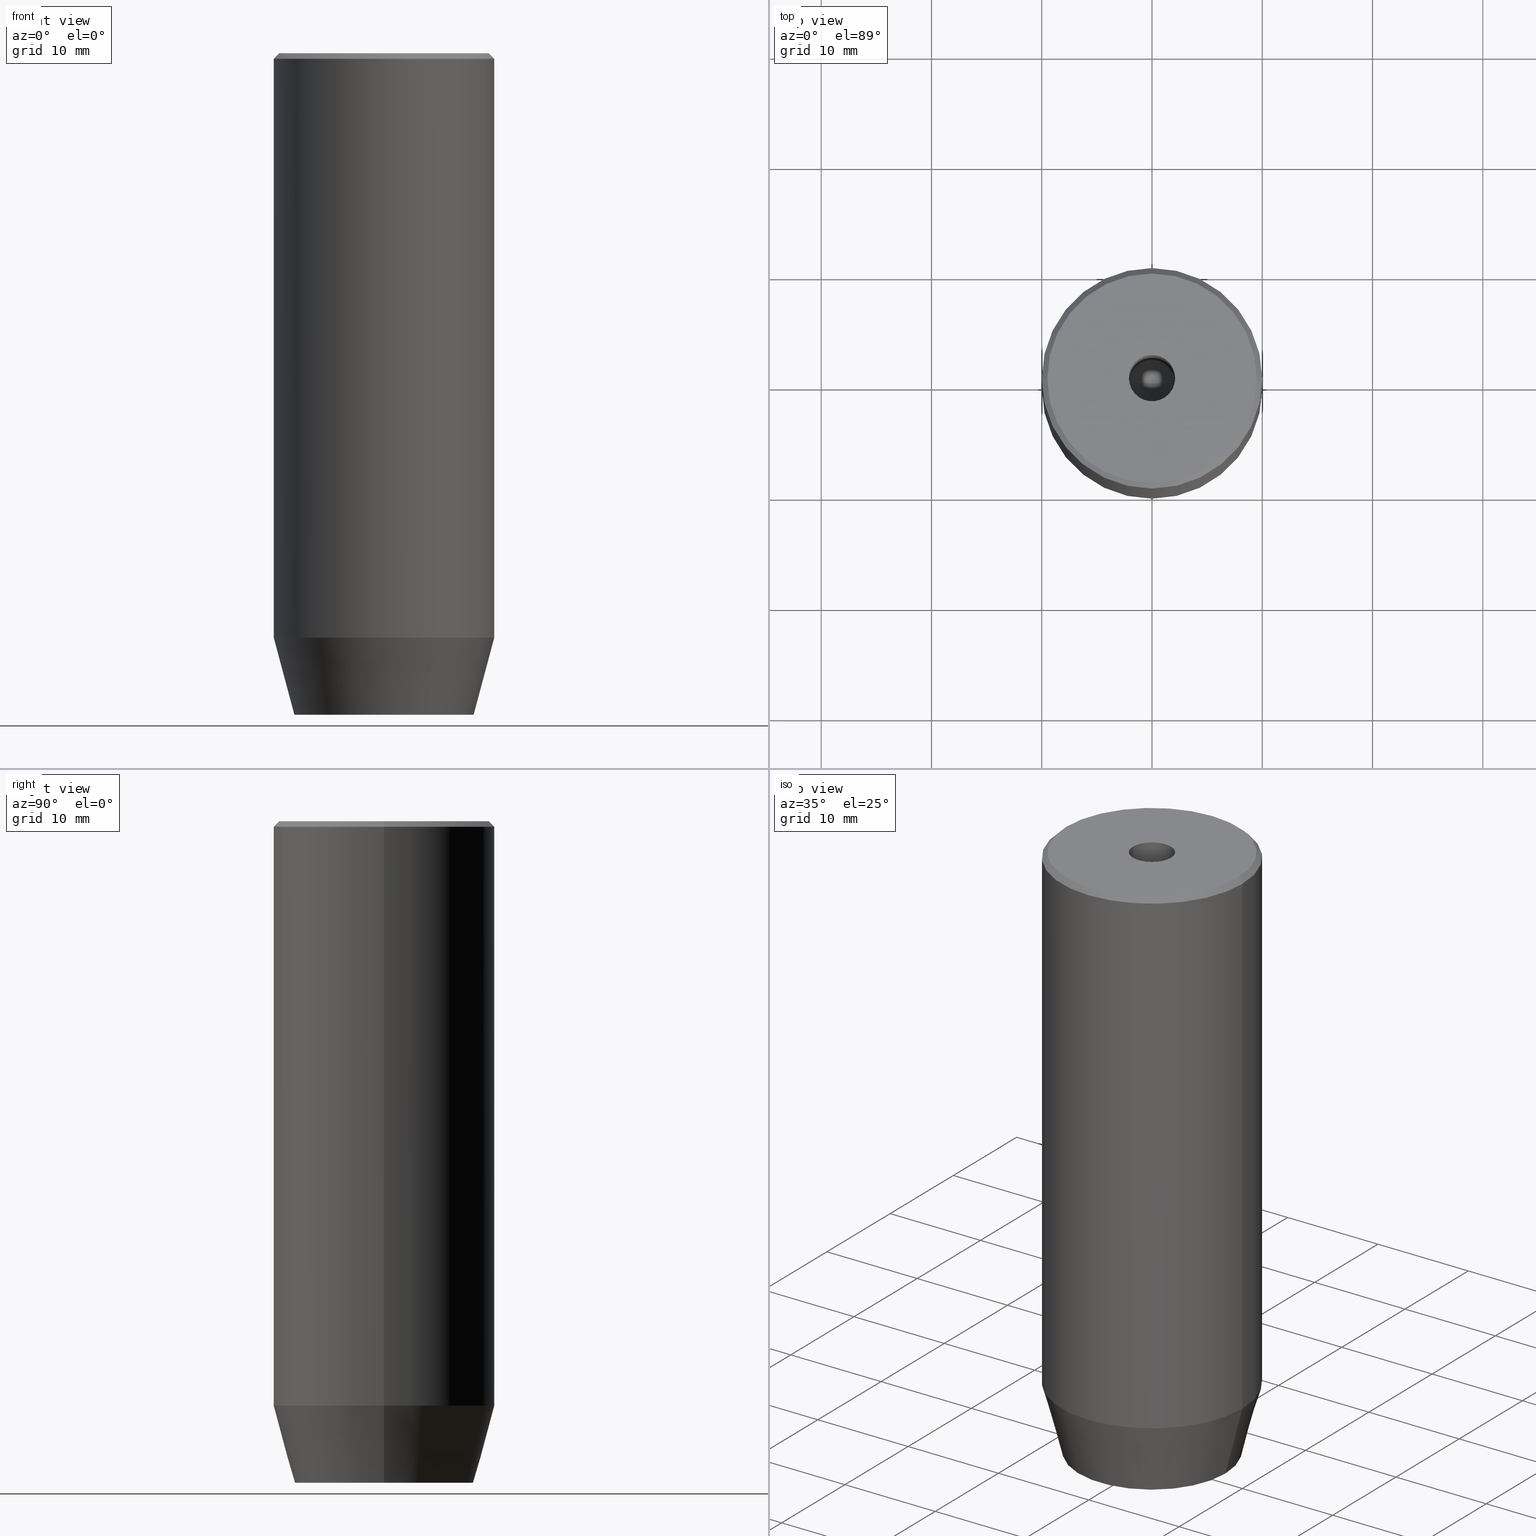
[diagram: canonical four-view strip — front | top / right | iso, engineering-drawing reading convention]
A machine part, canonical four-view strip (front | top / right | iso — engineering-drawing reading convention). The complete STEP part file that produces these views, byte-faithful:
ISO-10303-21;
HEADER;
FILE_DESCRIPTION (( 'STEP AP203' ),
    '1' );
FILE_NAME ('4749.STEP',
    '2024-01-02T19:06:29',
    ( '' ),
    ( '' ),
    'SwSTEP 2.0',
    'SolidWorks 2019',
    '' );
FILE_SCHEMA (( 'CONFIG_CONTROL_DESIGN' ));
ENDSEC;

DATA;
#1 = CARTESIAN_POINT ( 'NONE',  ( -2.000000000000000888, -3.464101615137754386, -57.20000000000000284 ) ) ;
#2 = CARTESIAN_POINT ( 'NONE',  ( -2.000000000000000888, -3.464101615137754386, -60.00000000000000000 ) ) ;
#3 = CARTESIAN_POINT ( 'NONE',  ( 0.000000000000000000, 0.000000000000000000, -1.990051048614449116E-16 ) ) ;
#4 = ORIENTED_EDGE ( 'NONE', *, *, #372, .F. ) ;
#5 = ORIENTED_EDGE ( 'NONE', *, *, #310, .T. ) ;
#6 = DIRECTION ( 'NONE',  ( 1.000000000000000000, 0.000000000000000000, 0.000000000000000000 ) ) ;
#7 = CARTESIAN_POINT ( 'NONE',  ( 0.000000000000000000, 0.000000000000000000, -0.5000000000000056621 ) ) ;
#8 = CARTESIAN_POINT ( 'NONE',  ( 0.000000000000000000, 0.000000000000000000, -1.990051048614449116E-16 ) ) ;
#9 = AXIS2_PLACEMENT_3D ( 'NONE', #189, #147, #235 ) ;
#10 = AXIS2_PLACEMENT_3D ( 'NONE', #87, #103, #281 ) ;
#11 = DIRECTION ( 'NONE',  ( 0.8660254037844385966, -0.5000000000000001110, 0.000000000000000000 ) ) ;
#12 = FACE_OUTER_BOUND ( 'NONE', #113, .T. ) ;
#13 = PRODUCT_RELATED_PRODUCT_CATEGORY ( 'detail', '', ( #487 ) ) ;
#14 = ORIENTED_EDGE ( 'NONE', *, *, #145, .T. ) ;
#15 = FACE_OUTER_BOUND ( 'NONE', #265, .T. ) ;
#16 = AXIS2_PLACEMENT_3D ( 'NONE', #130, #319, #41 ) ;
#17 = CARTESIAN_POINT ( 'NONE',  ( -2.000000000000000000, 3.464101615137754830, -57.20000000000000284 ) ) ;
#18 = ORIENTED_EDGE ( 'NONE', *, *, #218, .T. ) ;
#19 = DIRECTION ( 'NONE',  ( 1.000000000000000000, 0.000000000000000000, 0.000000000000000000 ) ) ;
#20 = EDGE_CURVE ( 'NONE', #101, #73, #497, .T. ) ;
#21 = CARTESIAN_POINT ( 'NONE',  ( -2.000000000000000000, 3.464101615137754830, -60.00000000000000000 ) ) ;
#22 = CARTESIAN_POINT ( 'NONE',  ( 2.099999999999998757, 0.000000000000000000, -1.990051048614449116E-16 ) ) ;
#23 = DIRECTION ( 'NONE',  ( 0.8660254037844384856, -0.5000000000000002220, 0.000000000000000000 ) ) ;
#24 = AXIS2_PLACEMENT_3D ( 'NONE', #420, #211, #523 ) ;
#25 =( LENGTH_UNIT ( ) NAMED_UNIT ( * ) SI_UNIT ( .MILLI., .METRE. ) );
#26 = CC_DESIGN_APPROVAL ( #221, ( #325 ) ) ;
#27 = CARTESIAN_POINT ( 'NONE',  ( 0.000000000000000000, 0.000000000000000000, -0.5000000000000056621 ) ) ;
#28 = CARTESIAN_POINT ( 'NONE',  ( 4.000000000000000000, -2.309401076758502480, -57.20000000000000284 ) ) ;
#29 = ORIENTED_EDGE ( 'NONE', *, *, #20, .T. ) ;
#30 = ORIENTED_EDGE ( 'NONE', *, *, #526, .F. ) ;
#31 = CONICAL_SURFACE ( 'NONE', #328, 9.500000000000001776, 0.7853981633974415066 ) ;
#32 = EDGE_CURVE ( 'NONE', #308, #71, #312, .T. ) ;
#33 = LOCAL_TIME ( 20, 6, 29.00000000000000000, #95 ) ;
#34 = APPROVAL_STATUS ( 'not_yet_approved' ) ;
#35 = CARTESIAN_POINT ( 'NONE',  ( -10.00000000000000000, 1.224646799147353256E-15, -53.00000000000000000 ) ) ;
#36 = ORIENTED_EDGE ( 'NONE', *, *, #498, .T. ) ;
#37 = ORIENTED_EDGE ( 'NONE', *, *, #587, .F. ) ;
#38 = FACE_OUTER_BOUND ( 'NONE', #84, .T. ) ;
#39 = PLANE ( 'NONE',  #59 ) ;
#40 = CARTESIAN_POINT ( 'NONE',  ( 0.000000000000000000, 0.000000000000000000, -53.00000000000000000 ) ) ;
#41 = DIRECTION ( 'NONE',  ( 1.000000000000000000, 0.000000000000000000, 0.000000000000000000 ) ) ;
#42 = ADVANCED_FACE ( 'NONE', ( #12 ), #99, .T. ) ;
#43 = DIRECTION ( 'NONE',  ( -0.000000000000000000, -0.000000000000000000, -1.000000000000000000 ) ) ;
#44 = VECTOR ( 'NONE', #495, 1000.000000000000000 ) ;
#45 = PERSON_AND_ORGANIZATION ( #191, #155 ) ;
#46 = CONICAL_SURFACE ( 'NONE', #9, 10.00000000000000000, 0.2617993877991500740 ) ;
#47 = DIRECTION ( 'NONE',  ( -0.2588190451025213501, 3.169619151431772337E-17, 0.9659258262890680902 ) ) ;
#48 = SECURITY_CLASSIFICATION ( '', '', #88 ) ;
#49 = DIRECTION ( 'NONE',  ( 0.000000000000000000, -1.000000000000000000, 0.000000000000000000 ) ) ;
#50 = ORIENTED_EDGE ( 'NONE', *, *, #176, .F. ) ;
#51 = DIRECTION ( 'NONE',  ( -0.000000000000000000, -0.000000000000000000, 1.000000000000000000 ) ) ;
#52 = VERTEX_POINT ( 'NONE', #194 ) ;
#53 = CARTESIAN_POINT ( 'NONE',  ( 0.000000000000000000, 0.000000000000000000, 0.000000000000000000 ) ) ;
#54 = EDGE_CURVE ( 'NONE', #69, #296, #190, .T. ) ;
#55 = DIRECTION ( 'NONE',  ( 1.000000000000000000, 0.000000000000000000, 0.000000000000000000 ) ) ;
#56 = CARTESIAN_POINT ( 'NONE',  ( 4.336808689942017736E-16, -4.618802153517006737, -57.20000000000000284 ) ) ;
#57 = CARTESIAN_POINT ( 'NONE',  ( -9.500000000000001776, 0.000000000000000000, 0.000000000000000000 ) ) ;
#58 = CARTESIAN_POINT ( 'NONE',  ( 2.000000000000000444, 3.464101615137754386, -57.20000000000000284 ) ) ;
#59 = AXIS2_PLACEMENT_3D ( 'NONE', #423, #250, #421 ) ;
#60 = CC_DESIGN_PERSON_AND_ORGANIZATION_ASSIGNMENT ( #348, #439, ( #355 ) ) ;
#61 = CIRCLE ( 'NONE', #237, 9.500000000000001776 ) ;
#62 = ORIENTED_EDGE ( 'NONE', *, *, #167, .F. ) ;
#63 = CC_DESIGN_SECURITY_CLASSIFICATION ( #48, ( #355 ) ) ;
#64 = DIRECTION ( 'NONE',  ( -0.000000000000000000, -0.000000000000000000, 1.000000000000000000 ) ) ;
#65 = VERTEX_POINT ( 'NONE', #271 ) ;
#66 = FACE_OUTER_BOUND ( 'NONE', #504, .T. ) ;
#67 = ORIENTED_EDGE ( 'NONE', *, *, #310, .F. ) ;
#68 = EDGE_CURVE ( 'NONE', #174, #451, #574, .T. ) ;
#69 = VERTEX_POINT ( 'NONE', #22 ) ;
#70 = VECTOR ( 'NONE', #166, 1000.000000000000000 ) ;
#71 = VERTEX_POINT ( 'NONE', #74 ) ;
#72 = CARTESIAN_POINT ( 'NONE',  ( 4.000000000000000000, 0.000000000000000000, -57.20000000000000284 ) ) ;
#73 = VERTEX_POINT ( 'NONE', #239 ) ;
#74 = CARTESIAN_POINT ( 'NONE',  ( -4.000000000000000000, -2.309401076758503368, -57.20000000000000284 ) ) ;
#75 = VERTEX_POINT ( 'NONE', #204 ) ;
#76 = PLANE ( 'NONE',  #123 ) ;
#77 = DIRECTION ( 'NONE',  ( 0.5000000000000003331, -0.8660254037844385966, 0.000000000000000000 ) ) ;
#78 = VERTEX_POINT ( 'NONE', #416 ) ;
#79 = AXIS2_PLACEMENT_3D ( 'NONE', #53, #496, #452 ) ;
#80 = VECTOR ( 'NONE', #234, 1000.000000000000000 ) ;
#81 =( NAMED_UNIT ( * ) SI_UNIT ( $, .STERADIAN. ) SOLID_ANGLE_UNIT ( ) );
#82 = ORIENTED_EDGE ( 'NONE', *, *, #249, .F. ) ;
#83 = LINE ( 'NONE', #291, #427 ) ;
#84 = EDGE_LOOP ( 'NONE', ( #30, #254, #500, #37 ) ) ;
#85 = ADVANCED_FACE ( 'NONE', ( #301 ), #477, .T. ) ;
#86 = ORIENTED_EDGE ( 'NONE', *, *, #405, .F. ) ;
#87 = CARTESIAN_POINT ( 'NONE',  ( 0.000000000000000000, 0.000000000000000000, 0.000000000000000000 ) ) ;
#88 = SECURITY_CLASSIFICATION_LEVEL ( 'unclassified' ) ;
#89 = LINE ( 'NONE', #535, #241 ) ;
#90 = EDGE_LOOP ( 'NONE', ( #14, #126, #549, #178 ) ) ;
#91 = ADVANCED_FACE ( 'NONE', ( #472, #433 ), #39, .T. ) ;
#92 = ORIENTED_EDGE ( 'NONE', *, *, #382, .F. ) ;
#93 = DIRECTION ( 'NONE',  ( 1.000000000000000000, 0.000000000000000000, 0.000000000000000000 ) ) ;
#94 = APPLICATION_CONTEXT ( 'configuration controlled 3d designs of mechanical parts and assemblies' ) ;
#95 = COORDINATED_UNIVERSAL_TIME_OFFSET ( 1, 0, .AHEAD. ) ;
#96 = VECTOR ( 'NONE', #106, 1000.000000000000114 ) ;
#97 = PERSON_AND_ORGANIZATION ( #191, #155 ) ;
#98 = VECTOR ( 'NONE', #538, 1000.000000000000000 ) ;
#99 = CYLINDRICAL_SURFACE ( 'NONE', #320, 10.00000000000000000 ) ;
#100 = VECTOR ( 'NONE', #142, 1000.000000000000000 ) ;
#101 = VERTEX_POINT ( 'NONE', #28 ) ;
#102 = FACE_OUTER_BOUND ( 'NONE', #282, .T. ) ;
#103 = DIRECTION ( 'NONE',  ( -0.000000000000000000, -0.000000000000000000, 1.000000000000000000 ) ) ;
#104 = FACE_OUTER_BOUND ( 'NONE', #499, .T. ) ;
#105 = CARTESIAN_POINT ( 'NONE',  ( 4.000000000000000000, 2.309401076758503368, -57.20000000000000284 ) ) ;
#106 = DIRECTION ( 'NONE',  ( -0.8660254037844384856, 0.5000000000000002220, 0.000000000000000000 ) ) ;
#107 = CARTESIAN_POINT ( 'NONE',  ( -4.000000000000000000, 2.309401076758503368, -57.20000000000000284 ) ) ;
#108 = VECTOR ( 'NONE', #362, 1000.000000000000000 ) ;
#109 = ORIENTED_EDGE ( 'NONE', *, *, #539, .F. ) ;
#110 = LOCAL_TIME ( 20, 6, 29.00000000000000000, #432 ) ;
#111 = EDGE_CURVE ( 'NONE', #75, #226, #122, .T. ) ;
#112 = FACE_OUTER_BOUND ( 'NONE', #559, .T. ) ;
#113 = EDGE_LOOP ( 'NONE', ( #131, #440, #347, #324 ) ) ;
#114 = DIRECTION ( 'NONE',  ( -0.000000000000000000, -0.000000000000000000, 1.000000000000000000 ) ) ;
#115 = VECTOR ( 'NONE', #49, 1000.000000000000000 ) ;
#116 = EDGE_CURVE ( 'NONE', #73, #78, #83, .T. ) ;
#117 = DIRECTION ( 'NONE',  ( -0.8660254037844385966, -0.4999999999999999445, 0.000000000000000000 ) ) ;
#118 = DIRECTION ( 'NONE',  ( 0.8660254037844384856, 0.5000000000000002220, 0.000000000000000000 ) ) ;
#119 = LINE ( 'NONE', #560, #70 ) ;
#120 = CARTESIAN_POINT ( 'NONE',  ( -2.000000000000000888, -3.464101615137754386, -57.20000000000000284 ) ) ;
#121 = CC_DESIGN_PERSON_AND_ORGANIZATION_ASSIGNMENT ( #307, #577, ( #355 ) ) ;
#122 = LINE ( 'NONE', #212, #215 ) ;
#123 = AXIS2_PLACEMENT_3D ( 'NONE', #17, #455, #117 ) ;
#124 = CC_DESIGN_APPROVAL ( #532, ( #48 ) ) ;
#125 = VERTEX_POINT ( 'NONE', #255 ) ;
#126 = ORIENTED_EDGE ( 'NONE', *, *, #264, .F. ) ;
#127 = CALENDAR_DATE ( 2024, 2, 1 ) ;
#128 = ORIENTED_EDGE ( 'NONE', *, *, #364, .F. ) ;
#129 = APPROVAL_STATUS ( 'not_yet_approved' ) ;
#130 = CARTESIAN_POINT ( 'NONE',  ( 0.000000000000000000, 0.000000000000000000, -60.00000000000000000 ) ) ;
#131 = ORIENTED_EDGE ( 'NONE', *, *, #339, .F. ) ;
#132 = EDGE_CURVE ( 'NONE', #193, #393, #395, .T. ) ;
#133 = AXIS2_PLACEMENT_3D ( 'NONE', #563, #77, #118 ) ;
#134 = VERTEX_POINT ( 'NONE', #314 ) ;
#135 = APPROVAL_ROLE ( '' ) ;
#136 = DIRECTION ( 'NONE',  ( -1.000000000000000000, 0.000000000000000000, 0.000000000000000000 ) ) ;
#137 = LINE ( 'NONE', #303, #366 ) ;
#138 = APPROVAL ( #129, 'NEUR�EN�' ) ;
#139 = DATE_AND_TIME ( #537, #386 ) ;
#140 = DIRECTION ( 'NONE',  ( -1.000000000000000000, 0.000000000000000000, 0.000000000000000000 ) ) ;
#141 = VECTOR ( 'NONE', #188, 1000.000000000000114 ) ;
#142 = DIRECTION ( 'NONE',  ( -0.7071067811865426878, 0.000000000000000000, -0.7071067811865524577 ) ) ;
#143 = AXIS2_PLACEMENT_3D ( 'NONE', #270, #441, #6 ) ;
#144 = AXIS2_PLACEMENT_3D ( 'NONE', #120, #419, #23 ) ;
#145 = EDGE_CURVE ( 'NONE', #78, #217, #540, .T. ) ;
#146 = DIRECTION ( 'NONE',  ( 0.8660254037844387076, 0.5000000000000001110, 0.000000000000000000 ) ) ;
#147 = DIRECTION ( 'NONE',  ( -0.000000000000000000, -0.000000000000000000, 1.000000000000000000 ) ) ;
#148 = CYLINDRICAL_SURFACE ( 'NONE', #267, 10.00000000000000000 ) ;
#149 = ORIENTED_EDGE ( 'NONE', *, *, #162, .T. ) ;
#150 = ORIENTED_EDGE ( 'NONE', *, *, #339, .T. ) ;
#151 = ADVANCED_FACE ( 'NONE', ( #104 ), #486, .F. ) ;
#152 = ORIENTED_EDGE ( 'NONE', *, *, #466, .F. ) ;
#153 = AXIS2_PLACEMENT_3D ( 'NONE', #582, #403, #185 ) ;
#154 = VECTOR ( 'NONE', #47, 1000.000000000000000 ) ;
#155 = ORGANIZATION ( 'NEUR�EN�', 'NEUR�EN�', '' ) ;
#156 = CC_DESIGN_DATE_AND_TIME_ASSIGNMENT ( #139, #223, ( #325 ) ) ;
#157 = DIRECTION ( 'NONE',  ( -0.000000000000000000, -0.000000000000000000, 1.000000000000000000 ) ) ;
#158 = DIRECTION ( 'NONE',  ( -0.000000000000000000, -0.000000000000000000, 1.000000000000000000 ) ) ;
#159 = LINE ( 'NONE', #285, #321 ) ;
#160 = CARTESIAN_POINT ( 'NONE',  ( 0.000000000000000000, 4.618802153517006737, -57.20000000000000284 ) ) ;
#161 = DIRECTION ( 'NONE',  ( -0.000000000000000000, -0.000000000000000000, 1.000000000000000000 ) ) ;
#162 = EDGE_CURVE ( 'NONE', #518, #134, #464, .T. ) ;
#163 = AXIS2_PLACEMENT_3D ( 'NONE', #3, #544, #186 ) ;
#164 = VECTOR ( 'NONE', #525, 1000.000000000000000 ) ;
#165 = PLANE ( 'NONE',  #199 ) ;
#166 = DIRECTION ( 'NONE',  ( 0.000000000000000000, -1.000000000000000000, 0.000000000000000000 ) ) ;
#167 = EDGE_CURVE ( 'NONE', #193, #134, #274, .T. ) ;
#168 = EDGE_LOOP ( 'NONE', ( #86, #109, #262, #318 ) ) ;
#169 = DIRECTION ( 'NONE',  ( 0.000000000000000000, 0.000000000000000000, -1.000000000000000000 ) ) ;
#170 = CIRCLE ( 'NONE', #16, 8.124355652982137244 ) ;
#171 = ORIENTED_EDGE ( 'NONE', *, *, #349, .F. ) ;
#172 = APPROVAL_ROLE ( '' ) ;
#173 = CARTESIAN_POINT ( 'NONE',  ( 0.000000000000000000, 0.000000000000000000, 0.000000000000000000 ) ) ;
#174 = VERTEX_POINT ( 'NONE', #57 ) ;
#175 = FACE_OUTER_BOUND ( 'NONE', #168, .T. ) ;
#176 = EDGE_CURVE ( 'NONE', #71, #75, #545, .T. ) ;
#177 = EDGE_LOOP ( 'NONE', ( #435, #528, #483, #430, #457, #326 ) ) ;
#178 = ORIENTED_EDGE ( 'NONE', *, *, #332, .T. ) ;
#179 = PERSON_AND_ORGANIZATION_ROLE ( 'classification_officer' ) ;
#180 = DIRECTION ( 'NONE',  ( -0.000000000000000000, -0.000000000000000000, -1.000000000000000000 ) ) ;
#181 = CIRCLE ( 'NONE', #429, 10.00000000000000000 ) ;
#182 = APPROVAL_DATE_TIME ( #357, #221 ) ;
#183 = DIRECTION ( 'NONE',  ( 0.7071067811865426878, 8.659560562354873694E-17, -0.7071067811865524577 ) ) ;
#184 = VERTEX_POINT ( 'NONE', #548 ) ;
#185 = DIRECTION ( 'NONE',  ( -0.000000000000000000, 0.000000000000000000, -1.000000000000000000 ) ) ;
#186 = DIRECTION ( 'NONE',  ( 1.000000000000000000, 0.000000000000000000, 0.000000000000000000 ) ) ;
#187 = ADVANCED_FACE ( 'NONE', ( #507 ), #512, .F. ) ;
#188 = DIRECTION ( 'NONE',  ( -0.8660254037844384856, 0.5000000000000002220, 0.000000000000000000 ) ) ;
#189 = CARTESIAN_POINT ( 'NONE',  ( 0.000000000000000000, 0.000000000000000000, -53.00000000000000000 ) ) ;
#190 = CIRCLE ( 'NONE', #163, 2.099999999999998757 ) ;
#191 = PERSON ( 'NEUR�EN�', 'NEUR�EN�', 'NEUR�EN�', ('NEUR�EN�'), ('NEUR�EN�'), ('NEUR�EN�') ) ;
#192 = CARTESIAN_POINT ( 'NONE',  ( 0.000000000000000000, 0.000000000000000000, 0.000000000000000000 ) ) ;
#193 = VERTEX_POINT ( 'NONE', #552 ) ;
#194 = CARTESIAN_POINT ( 'NONE',  ( -2.099999999999995648, 2.571758278209436040E-16, -25.00000000000000000 ) ) ;
#195 = EDGE_CURVE ( 'NONE', #336, #205, #502, .T. ) ;
#196 = ORIENTED_EDGE ( 'NONE', *, *, #145, .F. ) ;
#197 = ORIENTED_EDGE ( 'NONE', *, *, #218, .F. ) ;
#198 = CARTESIAN_POINT ( 'NONE',  ( 0.000000000000000000, 0.000000000000000000, 0.000000000000000000 ) ) ;
#199 = AXIS2_PLACEMENT_3D ( 'NONE', #335, #289, #283 ) ;
#200 = CARTESIAN_POINT ( 'NONE',  ( -2.099999999999998757, 2.571758278209440478E-16, -1.990051048614449116E-16 ) ) ;
#201 = PLANE ( 'NONE',  #133 ) ;
#202 = CARTESIAN_POINT ( 'NONE',  ( -10.00000000000000000, 1.224646799147353256E-15, -0.5000000000000056621 ) ) ;
#203 = DIRECTION ( 'NONE',  ( -0.000000000000000000, -0.000000000000000000, 1.000000000000000000 ) ) ;
#204 = CARTESIAN_POINT ( 'NONE',  ( -4.000000000000000000, 2.309401076758503368, -57.20000000000000284 ) ) ;
#205 = VERTEX_POINT ( 'NONE', #422 ) ;
#206 = FACE_OUTER_BOUND ( 'NONE', #520, .T. ) ;
#207 = ORIENTED_EDGE ( 'NONE', *, *, #276, .F. ) ;
#208 = DIRECTION ( 'NONE',  ( -0.000000000000000000, -0.000000000000000000, 1.000000000000000000 ) ) ;
#209 = ORIENTED_EDGE ( 'NONE', *, *, #410, .T. ) ;
#210 = DIRECTION ( 'NONE',  ( 0.000000000000000000, 0.000000000000000000, -1.000000000000000000 ) ) ;
#211 = DIRECTION ( 'NONE',  ( 0.5000000000000001110, 0.8660254037844385966, -0.000000000000000000 ) ) ;
#212 = CARTESIAN_POINT ( 'NONE',  ( -2.000000000000000000, 3.464101615137754830, -57.20000000000000284 ) ) ;
#213 = ADVANCED_FACE ( 'NONE', ( #371, #505 ), #327, .T. ) ;
#214 = DIRECTION ( 'NONE',  ( 0.8660254037844387076, 0.5000000000000001110, 0.000000000000000000 ) ) ;
#215 = VECTOR ( 'NONE', #214, 999.9999999999998863 ) ;
#216 = AXIS2_PLACEMENT_3D ( 'NONE', #375, #158, #565 ) ;
#217 = VERTEX_POINT ( 'NONE', #508 ) ;
#218 = EDGE_CURVE ( 'NONE', #75, #184, #367, .T. ) ;
#219 = PERSON_AND_ORGANIZATION_ROLE ( 'creator' ) ;
#220 = EDGE_LOOP ( 'NONE', ( #374, #417, #551, #253 ) ) ;
#221 = APPROVAL ( #34, 'NEUR�EN�' ) ;
#222 = CARTESIAN_POINT ( 'NONE',  ( 0.000000000000000000, 0.000000000000000000, 0.000000000000000000 ) ) ;
#223 = DATE_TIME_ROLE ( 'creation_date' ) ;
#224 = ORIENTED_EDGE ( 'NONE', *, *, #132, .T. ) ;
#225 = LINE ( 'NONE', #397, #438 ) ;
#226 = VERTEX_POINT ( 'NONE', #160 ) ;
#227 = AXIS2_PLACEMENT_3D ( 'NONE', #7, #543, #361 ) ;
#228 = CONICAL_SURFACE ( 'NONE', #555, 9.500000000000001776, 0.7853981633974415066 ) ;
#229 = AXIS2_PLACEMENT_3D ( 'NONE', #236, #247, #295 ) ;
#230 = DIRECTION ( 'NONE',  ( 0.000000000000000000, 0.000000000000000000, -1.000000000000000000 ) ) ;
#231 = CARTESIAN_POINT ( 'NONE',  ( -4.000000000000000000, 0.000000000000000000, -57.20000000000000284 ) ) ;
#232 = ADVANCED_FACE ( 'NONE', ( #546 ), #148, .T. ) ;
#233 = DIRECTION ( 'NONE',  ( -0.000000000000000000, -0.000000000000000000, 1.000000000000000000 ) ) ;
#234 = DIRECTION ( 'NONE',  ( -0.000000000000000000, -0.000000000000000000, -1.000000000000000000 ) ) ;
#235 = DIRECTION ( 'NONE',  ( 1.000000000000000000, 0.000000000000000000, 0.000000000000000000 ) ) ;
#236 = CARTESIAN_POINT ( 'NONE',  ( 0.000000000000000000, 0.000000000000000000, 0.000000000000000000 ) ) ;
#237 = AXIS2_PLACEMENT_3D ( 'NONE', #409, #157, #284 ) ;
#238 = EDGE_CURVE ( 'NONE', #125, #73, #119, .T. ) ;
#239 = CARTESIAN_POINT ( 'NONE',  ( 4.000000000000000000, -2.309401076758502480, -60.00000000000000000 ) ) ;
#240 = DIRECTION ( 'NONE',  ( -0.8571673007021108903, 1.049727191138616847E-16, 0.5150380749100565980 ) ) ;
#241 = VECTOR ( 'NONE', #261, 1000.000000000000114 ) ;
#242 = EDGE_CURVE ( 'NONE', #52, #205, #251, .T. ) ;
#243 = EDGE_LOOP ( 'NONE', ( #463, #522 ) ) ;
#244 = DIRECTION ( 'NONE',  ( 1.000000000000000000, 0.000000000000000000, 0.000000000000000000 ) ) ;
#245 = ORIENTED_EDGE ( 'NONE', *, *, #349, .T. ) ;
#246 = FACE_OUTER_BOUND ( 'NONE', #304, .T. ) ;
#247 = DIRECTION ( 'NONE',  ( 0.000000000000000000, 0.000000000000000000, 1.000000000000000000 ) ) ;
#248 = ORIENTED_EDGE ( 'NONE', *, *, #443, .T. ) ;
#249 = EDGE_CURVE ( 'NONE', #360, #101, #509, .T. ) ;
#250 = DIRECTION ( 'NONE',  ( 0.000000000000000000, 0.000000000000000000, -1.000000000000000000 ) ) ;
#251 = CIRCLE ( 'NONE', #216, 2.099999999999995648 ) ;
#252 = DIRECTION ( 'NONE',  ( -1.000000000000000000, 0.000000000000000000, -0.000000000000000000 ) ) ;
#253 = ORIENTED_EDGE ( 'NONE', *, *, #392, .F. ) ;
#254 = ORIENTED_EDGE ( 'NONE', *, *, #379, .T. ) ;
#255 = CARTESIAN_POINT ( 'NONE',  ( 4.000000000000000000, 2.309401076758503368, -60.00000000000000000 ) ) ;
#256 = EDGE_CURVE ( 'NONE', #65, #471, #170, .T. ) ;
#257 = PERSON_AND_ORGANIZATION ( #191, #155 ) ;
#258 = ORIENTED_EDGE ( 'NONE', *, *, #242, .T. ) ;
#259 = CIRCLE ( 'NONE', #460, 8.124355652982137244 ) ;
#260 = PERSON_AND_ORGANIZATION_ROLE ( 'design_owner' ) ;
#261 = DIRECTION ( 'NONE',  ( -0.8660254037844384856, -0.5000000000000002220, 0.000000000000000000 ) ) ;
#262 = ORIENTED_EDGE ( 'NONE', *, *, #466, .T. ) ;
#263 = SHAPE_DEFINITION_REPRESENTATION ( #400, #411 ) ;
#264 = EDGE_CURVE ( 'NONE', #71, #217, #583, .T. ) ;
#265 = EDGE_LOOP ( 'NONE', ( #378, #363, #258 ) ) ;
#266 = AXIS2_PLACEMENT_3D ( 'NONE', #40, #233, #93 ) ;
#267 = AXIS2_PLACEMENT_3D ( 'NONE', #368, #64, #572 ) ;
#268 = APPROVAL_ROLE ( '' ) ;
#269 = LINE ( 'NONE', #389, #396 ) ;
#270 = CARTESIAN_POINT ( 'NONE',  ( 0.000000000000000000, 0.000000000000000000, -25.00000000000000000 ) ) ;
#271 = CARTESIAN_POINT ( 'NONE',  ( 8.124355652982137244, 0.000000000000000000, -60.00000000000000000 ) ) ;
#272 = LINE ( 'NONE', #56, #80 ) ;
#273 = DIRECTION ( 'NONE',  ( -0.000000000000000000, -0.000000000000000000, -1.000000000000000000 ) ) ;
#274 = LINE ( 'NONE', #491, #44 ) ;
#275 = LINE ( 'NONE', #584, #108 ) ;
#276 = EDGE_CURVE ( 'NONE', #134, #518, #354, .T. ) ;
#277 = ORIENTED_EDGE ( 'NONE', *, *, #238, .T. ) ;
#278 = AXIS2_PLACEMENT_3D ( 'NONE', #516, #169, #252 ) ;
#279 = AXIS2_PLACEMENT_3D ( 'NONE', #331, #114, #456 ) ;
#280 = ORIENTED_EDGE ( 'NONE', *, *, #410, .F. ) ;
#281 = DIRECTION ( 'NONE',  ( 1.000000000000000000, 0.000000000000000000, 0.000000000000000000 ) ) ;
#282 = EDGE_LOOP ( 'NONE', ( #408, #484, #580 ) ) ;
#283 = DIRECTION ( 'NONE',  ( 0.000000000000000000, 0.000000000000000000, 1.000000000000000000 ) ) ;
#284 = DIRECTION ( 'NONE',  ( 1.000000000000000000, 0.000000000000000000, 0.000000000000000000 ) ) ;
#285 = CARTESIAN_POINT ( 'NONE',  ( 2.099999999999996980, 0.000000000000000000, 0.000000000000000000 ) ) ;
#286 = ADVANCED_FACE ( 'NONE', ( #381 ), #76, .F. ) ;
#287 = CIRCLE ( 'NONE', #575, 2.099999999999998757 ) ;
#288 = ADVANCED_FACE ( 'NONE', ( #206 ), #165, .F. ) ;
#289 = DIRECTION ( 'NONE',  ( -1.000000000000000000, 0.000000000000000000, 0.000000000000000000 ) ) ;
#290 = CC_DESIGN_DATE_AND_TIME_ASSIGNMENT ( #317, #428, ( #48 ) ) ;
#291 = CARTESIAN_POINT ( 'NONE',  ( 2.000000000000000888, -3.464101615137754386, -60.00000000000000000 ) ) ;
#292 = VECTOR ( 'NONE', #180, 1000.000000000000000 ) ;
#293 =( NAMED_UNIT ( * ) PLANE_ANGLE_UNIT ( ) SI_UNIT ( $, .RADIAN. ) );
#294 = AXIS2_PLACEMENT_3D ( 'NONE', #316, #51, #55 ) ;
#295 = DIRECTION ( 'NONE',  ( 1.000000000000000000, 0.000000000000000000, 0.000000000000000000 ) ) ;
#296 = VERTEX_POINT ( 'NONE', #200 ) ;
#297 = DATE_AND_TIME ( #524, #322 ) ;
#298 = CYLINDRICAL_SURFACE ( 'NONE', #10, 2.099999999999996980 ) ;
#299 = APPROVAL_STATUS ( 'not_yet_approved' ) ;
#300 = LINE ( 'NONE', #391, #337 ) ;
#301 = FACE_OUTER_BOUND ( 'NONE', #177, .T. ) ;
#302 = AXIS2_PLACEMENT_3D ( 'NONE', #198, #450, #558 ) ;
#303 = CARTESIAN_POINT ( 'NONE',  ( 0.000000000000000000, 4.618802153517006737, -57.20000000000000284 ) ) ;
#304 = EDGE_LOOP ( 'NONE', ( #209, #67, #128, #426 ) ) ;
#305 = LOCAL_TIME ( 20, 6, 29.00000000000000000, #529 ) ;
#306 = EDGE_LOOP ( 'NONE', ( #453, #334, #343, #207 ) ) ;
#307 = PERSON_AND_ORGANIZATION ( #191, #155 ) ;
#308 = VERTEX_POINT ( 'NONE', #415 ) ;
#309 = ORIENTED_EDGE ( 'NONE', *, *, #414, .F. ) ;
#310 = EDGE_CURVE ( 'NONE', #360, #125, #338, .T. ) ;
#311 = PERSON_AND_ORGANIZATION ( #191, #155 ) ;
#312 = LINE ( 'NONE', #1, #96 ) ;
#313 = ORIENTED_EDGE ( 'NONE', *, *, #498, .F. ) ;
#314 = CARTESIAN_POINT ( 'NONE',  ( 10.00000000000000000, 0.000000000000000000, -0.5000000000000056621 ) ) ;
#315 = CARTESIAN_POINT ( 'NONE',  ( -10.00000000000000000, 1.224646799147353256E-15, -53.00000000000000000 ) ) ;
#316 = CARTESIAN_POINT ( 'NONE',  ( 0.000000000000000000, 0.000000000000000000, -53.00000000000000000 ) ) ;
#317 = DATE_AND_TIME ( #351, #110 ) ;
#318 = ORIENTED_EDGE ( 'NONE', *, *, #54, .T. ) ;
#319 = DIRECTION ( 'NONE',  ( -0.000000000000000000, -0.000000000000000000, 1.000000000000000000 ) ) ;
#320 = AXIS2_PLACEMENT_3D ( 'NONE', #358, #377, #437 ) ;
#321 = VECTOR ( 'NONE', #203, 1000.000000000000000 ) ;
#322 = LOCAL_TIME ( 20, 6, 29.00000000000000000, #390 ) ;
#323 = EDGE_CURVE ( 'NONE', #393, #193, #181, .T. ) ;
#324 = ORIENTED_EDGE ( 'NONE', *, *, #276, .T. ) ;
#325 = PRODUCT_DEFINITION ( 'NEZN�M�', '', #355, #458 ) ;
#326 = ORIENTED_EDGE ( 'NONE', *, *, #176, .T. ) ;
#327 = PLANE ( 'NONE',  #475 ) ;
#328 = AXIS2_PLACEMENT_3D ( 'NONE', #173, #230, #140 ) ;
#329 = EDGE_LOOP ( 'NONE', ( #365, #313 ) ) ;
#330 =( GEOMETRIC_REPRESENTATION_CONTEXT ( 3 ) GLOBAL_UNCERTAINTY_ASSIGNED_CONTEXT ( ( #333 ) ) GLOBAL_UNIT_ASSIGNED_CONTEXT ( ( #25, #293, #81 ) ) REPRESENTATION_CONTEXT ( 'NONE', 'WORKASPACE' ) );
#331 = CARTESIAN_POINT ( 'NONE',  ( 0.000000000000000000, 0.000000000000000000, -25.00000000000000000 ) ) ;
#332 = EDGE_CURVE ( 'NONE', #308, #78, #272, .T. ) ;
#333 = UNCERTAINTY_MEASURE_WITH_UNIT (LENGTH_MEASURE( 1.000000000000000082E-05 ), #25, 'distance_accuracy_value', 'NONE');
#334 = ORIENTED_EDGE ( 'NONE', *, *, #68, .F. ) ;
#335 = CARTESIAN_POINT ( 'NONE',  ( -4.000000000000000000, 0.000000000000000000, -57.20000000000000284 ) ) ;
#336 = VERTEX_POINT ( 'NONE', #406 ) ;
#337 = VECTOR ( 'NONE', #476, 1000.000000000000000 ) ;
#338 = LINE ( 'NONE', #511, #385 ) ;
#339 = EDGE_CURVE ( 'NONE', #393, #518, #275, .T. ) ;
#340 = CARTESIAN_POINT ( 'NONE',  ( 0.000000000000000000, 0.000000000000000000, -53.00000000000000000 ) ) ;
#341 = CC_DESIGN_PERSON_AND_ORGANIZATION_ASSIGNMENT ( #45, #219, ( #325 ) ) ;
#342 = CC_DESIGN_PERSON_AND_ORGANIZATION_ASSIGNMENT ( #257, #260, ( #487 ) ) ;
#343 = ORIENTED_EDGE ( 'NONE', *, *, #587, .T. ) ;
#344 = ORIENTED_EDGE ( 'NONE', *, *, #116, .T. ) ;
#345 = VECTOR ( 'NONE', #146, 999.9999999999998863 ) ;
#346 = APPROVAL_PERSON_ORGANIZATION ( #353, #221, #135 ) ;
#347 = ORIENTED_EDGE ( 'NONE', *, *, #167, .T. ) ;
#348 = PERSON_AND_ORGANIZATION ( #191, #155 ) ;
#349 = EDGE_CURVE ( 'NONE', #296, #69, #287, .T. ) ;
#350 = VERTEX_POINT ( 'NONE', #404 ) ;
#351 = CALENDAR_DATE ( 2024, 2, 1 ) ;
#352 = ORIENTED_EDGE ( 'NONE', *, *, #332, .F. ) ;
#353 = PERSON_AND_ORGANIZATION ( #191, #155 ) ;
#354 = CIRCLE ( 'NONE', #448, 10.00000000000000000 ) ;
#355 = PRODUCT_DEFINITION_FORMATION_WITH_SPECIFIED_SOURCE ( 'LIBOVOLN�', '', #487, .NOT_KNOWN. ) ;
#356 = ADVANCED_FACE ( 'NONE', ( #444 ), #46, .T. ) ;
#357 = DATE_AND_TIME ( #127, #305 ) ;
#358 = CARTESIAN_POINT ( 'NONE',  ( 0.000000000000000000, 0.000000000000000000, 0.000000000000000000 ) ) ;
#359 = LINE ( 'NONE', #315, #154 ) ;
#360 = VERTEX_POINT ( 'NONE', #105 ) ;
#361 = DIRECTION ( 'NONE',  ( 1.000000000000000000, 0.000000000000000000, 0.000000000000000000 ) ) ;
#362 = DIRECTION ( 'NONE',  ( -0.000000000000000000, -0.000000000000000000, 1.000000000000000000 ) ) ;
#363 = ORIENTED_EDGE ( 'NONE', *, *, #489, .T. ) ;
#364 = EDGE_CURVE ( 'NONE', #226, #360, #536, .T. ) ;
#365 = ORIENTED_EDGE ( 'NONE', *, *, #256, .F. ) ;
#366 = VECTOR ( 'NONE', #43, 1000.000000000000000 ) ;
#367 = LINE ( 'NONE', #107, #407 ) ;
#368 = CARTESIAN_POINT ( 'NONE',  ( 0.000000000000000000, 0.000000000000000000, 0.000000000000000000 ) ) ;
#369 = ORIENTED_EDGE ( 'NONE', *, *, #20, .F. ) ;
#370 = FACE_OUTER_BOUND ( 'NONE', #531, .T. ) ;
#371 = FACE_BOUND ( 'NONE', #425, .T. ) ;
#372 = EDGE_CURVE ( 'NONE', #226, #350, #137, .T. ) ;
#373 = ORIENTED_EDGE ( 'NONE', *, *, #431, .T. ) ;
#374 = ORIENTED_EDGE ( 'NONE', *, *, #256, .T. ) ;
#375 = CARTESIAN_POINT ( 'NONE',  ( 0.000000000000000000, 0.000000000000000000, -25.00000000000000000 ) ) ;
#376 = DIRECTION ( 'NONE',  ( 1.000000000000000000, 0.000000000000000000, 0.000000000000000000 ) ) ;
#377 = DIRECTION ( 'NONE',  ( -0.000000000000000000, -0.000000000000000000, 1.000000000000000000 ) ) ;
#378 = ORIENTED_EDGE ( 'NONE', *, *, #195, .F. ) ;
#379 = EDGE_CURVE ( 'NONE', #451, #134, #225, .T. ) ;
#380 = CIRCLE ( 'NONE', #279, 2.099999999999995648 ) ;
#381 = FACE_OUTER_BOUND ( 'NONE', #542, .T. ) ;
#382 = EDGE_CURVE ( 'NONE', #471, #393, #359, .T. ) ;
#383 = APPROVAL_DATE_TIME ( #297, #138 ) ;
#384 = CONICAL_SURFACE ( 'NONE', #143, 2.099999999999995648, 1.029744258676651647 ) ;
#385 = VECTOR ( 'NONE', #418, 1000.000000000000000 ) ;
#386 = LOCAL_TIME ( 20, 6, 29.00000000000000000, #436 ) ;
#387 = ORIENTED_EDGE ( 'NONE', *, *, #264, .T. ) ;
#388 = APPROVAL_DATE_TIME ( #485, #532 ) ;
#389 = CARTESIAN_POINT ( 'NONE',  ( -2.099999999999996980, 2.571758278209438013E-16, 0.000000000000000000 ) ) ;
#390 = COORDINATED_UNIVERSAL_TIME_OFFSET ( 1, 0, .AHEAD. ) ;
#391 = CARTESIAN_POINT ( 'NONE',  ( 2.000000000000000444, 3.464101615137754386, -60.00000000000000000 ) ) ;
#392 = EDGE_CURVE ( 'NONE', #65, #193, #488, .T. ) ;
#393 = VERTEX_POINT ( 'NONE', #35 ) ;
#394 = CARTESIAN_POINT ( 'NONE',  ( -4.000000000000000000, -2.309401076758503368, -57.20000000000000284 ) ) ;
#395 = CIRCLE ( 'NONE', #266, 10.00000000000000000 ) ;
#396 = VECTOR ( 'NONE', #530, 1000.000000000000000 ) ;
#397 = CARTESIAN_POINT ( 'NONE',  ( 9.500000000000001776, 1.163414459189985682E-15, 0.000000000000000000 ) ) ;
#398 = DIRECTION ( 'NONE',  ( 0.000000000000000000, 1.000000000000000000, 0.000000000000000000 ) ) ;
#399 = APPLICATION_PROTOCOL_DEFINITION ( 'international standard', 'config_control_design', 1994, #94 ) ;
#400 = PRODUCT_DEFINITION_SHAPE ( 'NONE', 'NONE',  #325 ) ;
#401 = LINE ( 'NONE', #541, #100 ) ;
#402 = ORIENTED_EDGE ( 'NONE', *, *, #405, .T. ) ;
#403 = DIRECTION ( 'NONE',  ( 1.000000000000000000, 0.000000000000000000, -0.000000000000000000 ) ) ;
#404 = CARTESIAN_POINT ( 'NONE',  ( 2.168404344971008868E-16, 4.618802153517006737, -60.00000000000000000 ) ) ;
#405 = EDGE_CURVE ( 'NONE', #52, #296, #269, .T. ) ;
#406 = CARTESIAN_POINT ( 'NONE',  ( -6.432287649943602629E-15, 0.000000000000000000, -26.26180729995787999 ) ) ;
#407 = VECTOR ( 'NONE', #561, 1000.000000000000000 ) ;
#408 = ORIENTED_EDGE ( 'NONE', *, *, #489, .F. ) ;
#409 = CARTESIAN_POINT ( 'NONE',  ( 0.000000000000000000, 0.000000000000000000, 0.000000000000000000 ) ) ;
#410 = EDGE_CURVE ( 'NONE', #350, #125, #300, .T. ) ;
#411 = ADVANCED_BREP_SHAPE_REPRESENTATION ( '4749', ( #445, #229 ), #330 ) ;
#412 = CARTESIAN_POINT ( 'NONE',  ( 0.000000000000000000, 0.000000000000000000, -60.00000000000000000 ) ) ;
#413 = ORIENTED_EDGE ( 'NONE', *, *, #54, .F. ) ;
#414 = EDGE_CURVE ( 'NONE', #101, #308, #89, .T. ) ;
#415 = CARTESIAN_POINT ( 'NONE',  ( 4.336808689942017736E-16, -4.618802153517006737, -57.20000000000000284 ) ) ;
#416 = CARTESIAN_POINT ( 'NONE',  ( 4.336808689942017736E-16, -4.618802153517006737, -60.00000000000000000 ) ) ;
#417 = ORIENTED_EDGE ( 'NONE', *, *, #382, .T. ) ;
#418 = DIRECTION ( 'NONE',  ( -0.000000000000000000, -0.000000000000000000, -1.000000000000000000 ) ) ;
#419 = DIRECTION ( 'NONE',  ( -0.5000000000000003331, -0.8660254037844385966, 0.000000000000000000 ) ) ;
#420 = CARTESIAN_POINT ( 'NONE',  ( 2.000000000000000444, 3.464101615137754386, -57.20000000000000284 ) ) ;
#421 = DIRECTION ( 'NONE',  ( -1.000000000000000000, 0.000000000000000000, -0.000000000000000000 ) ) ;
#422 = CARTESIAN_POINT ( 'NONE',  ( 2.099999999999995648, 0.000000000000000000, -25.00000000000000000 ) ) ;
#423 = CARTESIAN_POINT ( 'NONE',  ( 0.000000000000000000, 8.124355652982137244, -60.00000000000000000 ) ) ;
#424 = ADVANCED_FACE ( 'NONE', ( #38 ), #228, .T. ) ;
#425 = EDGE_LOOP ( 'NONE', ( #413, #171 ) ) ;
#426 = ORIENTED_EDGE ( 'NONE', *, *, #372, .T. ) ;
#427 = VECTOR ( 'NONE', #467, 1000.000000000000114 ) ;
#428 = DATE_TIME_ROLE ( 'classification_date' ) ;
#429 = AXIS2_PLACEMENT_3D ( 'NONE', #340, #208, #513 ) ;
#430 = ORIENTED_EDGE ( 'NONE', *, *, #414, .T. ) ;
#431 = EDGE_CURVE ( 'NONE', #217, #184, #482, .T. ) ;
#432 = COORDINATED_UNIVERSAL_TIME_OFFSET ( 1, 0, .AHEAD. ) ;
#433 = FACE_OUTER_BOUND ( 'NONE', #329, .T. ) ;
#434 = DIRECTION ( 'NONE',  ( -0.000000000000000000, -0.000000000000000000, 1.000000000000000000 ) ) ;
#435 = ORIENTED_EDGE ( 'NONE', *, *, #111, .T. ) ;
#436 = COORDINATED_UNIVERSAL_TIME_OFFSET ( 1, 0, .AHEAD. ) ;
#437 = DIRECTION ( 'NONE',  ( 1.000000000000000000, 0.000000000000000000, 0.000000000000000000 ) ) ;
#438 = VECTOR ( 'NONE', #183, 1000.000000000000000 ) ;
#439 = PERSON_AND_ORGANIZATION_ROLE ( 'design_supplier' ) ;
#440 = ORIENTED_EDGE ( 'NONE', *, *, #323, .T. ) ;
#441 = DIRECTION ( 'NONE',  ( -0.000000000000000000, -0.000000000000000000, 1.000000000000000000 ) ) ;
#442 = DIRECTION ( 'NONE',  ( 1.000000000000000000, 0.000000000000000000, 0.000000000000000000 ) ) ;
#443 = EDGE_CURVE ( 'NONE', #184, #350, #446, .T. ) ;
#444 = FACE_OUTER_BOUND ( 'NONE', #220, .T. ) ;
#445 = MANIFOLD_SOLID_BREP ( 'Vrt�k z�vitn�ku pro M5 z�vit1', #554 ) ;
#446 = LINE ( 'NONE', #21, #345 ) ;
#447 = DIRECTION ( 'NONE',  ( 1.000000000000000000, 0.000000000000000000, 0.000000000000000000 ) ) ;
#448 = AXIS2_PLACEMENT_3D ( 'NONE', #27, #210, #19 ) ;
#449 = ADVANCED_FACE ( 'NONE', ( #579 ), #31, .T. ) ;
#450 = DIRECTION ( 'NONE',  ( -0.000000000000000000, -0.000000000000000000, 1.000000000000000000 ) ) ;
#451 = VERTEX_POINT ( 'NONE', #490 ) ;
#452 = DIRECTION ( 'NONE',  ( 1.000000000000000000, 0.000000000000000000, 0.000000000000000000 ) ) ;
#453 = ORIENTED_EDGE ( 'NONE', *, *, #379, .F. ) ;
#454 = DIRECTION ( 'NONE',  ( 0.000000000000000000, -0.000000000000000000, 1.000000000000000000 ) ) ;
#455 = DIRECTION ( 'NONE',  ( -0.5000000000000000000, 0.8660254037844387076, 0.000000000000000000 ) ) ;
#456 = DIRECTION ( 'NONE',  ( 1.000000000000000000, 0.000000000000000000, 0.000000000000000000 ) ) ;
#457 = ORIENTED_EDGE ( 'NONE', *, *, #32, .T. ) ;
#458 = DESIGN_CONTEXT ( 'detailed design', #94, 'design' ) ;
#459 = ADVANCED_FACE ( 'NONE', ( #102 ), #384, .F. ) ;
#460 = AXIS2_PLACEMENT_3D ( 'NONE', #412, #564, #447 ) ;
#461 = ORIENTED_EDGE ( 'NONE', *, *, #392, .T. ) ;
#462 = CARTESIAN_POINT ( 'NONE',  ( -8.124355652982137244, 1.109796706851640556E-15, -60.00000000000000000 ) ) ;
#463 = ORIENTED_EDGE ( 'NONE', *, *, #68, .T. ) ;
#464 = CIRCLE ( 'NONE', #227, 10.00000000000000000 ) ;
#465 = CC_DESIGN_APPROVAL ( #138, ( #355 ) ) ;
#466 = EDGE_CURVE ( 'NONE', #205, #69, #159, .T. ) ;
#467 = DIRECTION ( 'NONE',  ( -0.8660254037844384856, -0.5000000000000002220, 0.000000000000000000 ) ) ;
#468 = ORIENTED_EDGE ( 'NONE', *, *, #116, .F. ) ;
#469 = ORIENTED_EDGE ( 'NONE', *, *, #238, .F. ) ;
#470 = DIRECTION ( 'NONE',  ( 0.8571673007021108903, 0.000000000000000000, 0.5150380749100565980 ) ) ;
#471 = VERTEX_POINT ( 'NONE', #462 ) ;
#472 = FACE_BOUND ( 'NONE', #517, .T. ) ;
#473 = CARTESIAN_POINT ( 'NONE',  ( 2.099999999999995648, 0.000000000000000000, -25.00000000000000000 ) ) ;
#474 = ADVANCED_FACE ( 'NONE', ( #15 ), #503, .F. ) ;
#475 = AXIS2_PLACEMENT_3D ( 'NONE', #192, #454, #376 ) ;
#476 = DIRECTION ( 'NONE',  ( 0.8660254037844385966, -0.5000000000000001110, 0.000000000000000000 ) ) ;
#477 = PLANE ( 'NONE',  #278 ) ;
#478 = APPROVAL_PERSON_ORGANIZATION ( #97, #532, #268 ) ;
#479 = ORIENTED_EDGE ( 'NONE', *, *, #431, .F. ) ;
#480 = CC_DESIGN_PERSON_AND_ORGANIZATION_ASSIGNMENT ( #311, #179, ( #48 ) ) ;
#481 = CALENDAR_DATE ( 2024, 2, 1 ) ;
#482 = LINE ( 'NONE', #586, #98 ) ;
#483 = ORIENTED_EDGE ( 'NONE', *, *, #249, .T. ) ;
#484 = ORIENTED_EDGE ( 'NONE', *, *, #195, .T. ) ;
#485 = DATE_AND_TIME ( #481, #33 ) ;
#486 = PLANE ( 'NONE',  #153 ) ;
#487 = PRODUCT ( '4749', '4749', '', ( #521 ) ) ;
#488 = LINE ( 'NONE', #578, #164 ) ;
#489 = EDGE_CURVE ( 'NONE', #336, #52, #567, .T. ) ;
#490 = CARTESIAN_POINT ( 'NONE',  ( 9.500000000000001776, 1.194030629168669469E-15, 0.000000000000000000 ) ) ;
#491 = CARTESIAN_POINT ( 'NONE',  ( 10.00000000000000000, 0.000000000000000000, 0.000000000000000000 ) ) ;
#492 = CONICAL_SURFACE ( 'NONE', #294, 10.00000000000000000, 0.2617993877991500740 ) ;
#493 = CARTESIAN_POINT ( 'NONE',  ( 4.000000000000000000, -2.309401076758502480, -57.20000000000000284 ) ) ;
#494 = ORIENTED_EDGE ( 'NONE', *, *, #111, .F. ) ;
#495 = DIRECTION ( 'NONE',  ( -0.000000000000000000, -0.000000000000000000, 1.000000000000000000 ) ) ;
#496 = DIRECTION ( 'NONE',  ( -0.000000000000000000, -0.000000000000000000, 1.000000000000000000 ) ) ;
#497 = LINE ( 'NONE', #493, #568 ) ;
#498 = EDGE_CURVE ( 'NONE', #471, #65, #259, .T. ) ;
#499 = EDGE_LOOP ( 'NONE', ( #277, #369, #82, #5 ) ) ;
#500 = ORIENTED_EDGE ( 'NONE', *, *, #162, .F. ) ;
#501 = ORIENTED_EDGE ( 'NONE', *, *, #323, .F. ) ;
#502 = LINE ( 'NONE', #473, #585 ) ;
#503 = CONICAL_SURFACE ( 'NONE', #510, 2.099999999999995648, 1.029744258676651647 ) ;
#504 = EDGE_LOOP ( 'NONE', ( #92, #36, #461, #501 ) ) ;
#505 = FACE_OUTER_BOUND ( 'NONE', #243, .T. ) ;
#506 = ORIENTED_EDGE ( 'NONE', *, *, #242, .F. ) ;
#507 = FACE_OUTER_BOUND ( 'NONE', #90, .T. ) ;
#508 = CARTESIAN_POINT ( 'NONE',  ( -4.000000000000000000, -2.309401076758503368, -60.00000000000000000 ) ) ;
#509 = LINE ( 'NONE', #72, #115 ) ;
#510 = AXIS2_PLACEMENT_3D ( 'NONE', #566, #161, #244 ) ;
#511 = CARTESIAN_POINT ( 'NONE',  ( 4.000000000000000000, 2.309401076758503368, -57.20000000000000284 ) ) ;
#512 = PLANE ( 'NONE',  #144 ) ;
#513 = DIRECTION ( 'NONE',  ( 1.000000000000000000, 0.000000000000000000, 0.000000000000000000 ) ) ;
#514 = ADVANCED_FACE ( 'NONE', ( #370 ), #550, .F. ) ;
#515 = ORIENTED_EDGE ( 'NONE', *, *, #443, .F. ) ;
#516 = CARTESIAN_POINT ( 'NONE',  ( 0.000000000000000000, 0.000000000000000000, -57.20000000000000284 ) ) ;
#517 = EDGE_LOOP ( 'NONE', ( #515, #479, #196, #468, #469, #280 ) ) ;
#518 = VERTEX_POINT ( 'NONE', #202 ) ;
#519 = VECTOR ( 'NONE', #398, 1000.000000000000000 ) ;
#520 = EDGE_LOOP ( 'NONE', ( #373, #197, #50, #387 ) ) ;
#521 = MECHANICAL_CONTEXT ( 'NONE', #527, 'mechanical' ) ;
#522 = ORIENTED_EDGE ( 'NONE', *, *, #526, .T. ) ;
#523 = DIRECTION ( 'NONE',  ( -0.8660254037844385966, 0.5000000000000001110, 0.000000000000000000 ) ) ;
#524 = CALENDAR_DATE ( 2024, 2, 1 ) ;
#525 = DIRECTION ( 'NONE',  ( 0.2588190451025213501, 0.000000000000000000, 0.9659258262890680902 ) ) ;
#526 = EDGE_CURVE ( 'NONE', #451, #174, #61, .T. ) ;
#527 = APPLICATION_CONTEXT ( 'configuration controlled 3d designs of mechanical parts and assemblies' ) ;
#528 = ORIENTED_EDGE ( 'NONE', *, *, #364, .T. ) ;
#529 = COORDINATED_UNIVERSAL_TIME_OFFSET ( 1, 0, .AHEAD. ) ;
#530 = DIRECTION ( 'NONE',  ( -0.000000000000000000, -0.000000000000000000, 1.000000000000000000 ) ) ;
#531 = EDGE_LOOP ( 'NONE', ( #506, #402, #245, #152 ) ) ;
#532 = APPROVAL ( #299, 'NEUR�EN�' ) ;
#533 = PERSON_AND_ORGANIZATION ( #191, #155 ) ;
#534 = VECTOR ( 'NONE', #240, 1000.000000000000114 ) ;
#535 = CARTESIAN_POINT ( 'NONE',  ( 2.000000000000000888, -3.464101615137754386, -57.20000000000000284 ) ) ;
#536 = LINE ( 'NONE', #58, #569 ) ;
#537 = CALENDAR_DATE ( 2024, 2, 1 ) ;
#538 = DIRECTION ( 'NONE',  ( 0.000000000000000000, 1.000000000000000000, 0.000000000000000000 ) ) ;
#539 = EDGE_CURVE ( 'NONE', #205, #52, #380, .T. ) ;
#540 = LINE ( 'NONE', #2, #141 ) ;
#541 = CARTESIAN_POINT ( 'NONE',  ( -9.500000000000001776, 0.000000000000000000, 0.000000000000000000 ) ) ;
#542 = EDGE_LOOP ( 'NONE', ( #248, #4, #494, #18 ) ) ;
#543 = DIRECTION ( 'NONE',  ( 0.000000000000000000, 0.000000000000000000, -1.000000000000000000 ) ) ;
#544 = DIRECTION ( 'NONE',  ( -0.000000000000000000, -0.000000000000000000, 1.000000000000000000 ) ) ;
#545 = LINE ( 'NONE', #231, #519 ) ;
#546 = FACE_OUTER_BOUND ( 'NONE', #557, .T. ) ;
#547 = ADVANCED_FACE ( 'NONE', ( #112 ), #201, .F. ) ;
#548 = CARTESIAN_POINT ( 'NONE',  ( -4.000000000000000000, 2.309401076758503368, -60.00000000000000000 ) ) ;
#549 = ORIENTED_EDGE ( 'NONE', *, *, #32, .F. ) ;
#550 = CYLINDRICAL_SURFACE ( 'NONE', #302, 2.099999999999996980 ) ;
#551 = ORIENTED_EDGE ( 'NONE', *, *, #132, .F. ) ;
#552 = CARTESIAN_POINT ( 'NONE',  ( 10.00000000000000000, 0.000000000000000000, -53.00000000000000000 ) ) ;
#553 = CARTESIAN_POINT ( 'NONE',  ( -2.099999999999995648, 2.571758278209436040E-16, -25.00000000000000000 ) ) ;
#554 = CLOSED_SHELL ( 'NONE', ( #514, #474, #424, #356, #232, #91, #213, #42, #576, #449, #286, #288, #187, #547, #151, #562, #85, #459, #571 ) ) ;
#555 = AXIS2_PLACEMENT_3D ( 'NONE', #222, #581, #136 ) ;
#556 = APPROVAL_PERSON_ORGANIZATION ( #533, #138, #172 ) ;
#557 = EDGE_LOOP ( 'NONE', ( #224, #150, #149, #62 ) ) ;
#558 = DIRECTION ( 'NONE',  ( 1.000000000000000000, 0.000000000000000000, 0.000000000000000000 ) ) ;
#559 = EDGE_LOOP ( 'NONE', ( #344, #352, #309, #29 ) ) ;
#560 = CARTESIAN_POINT ( 'NONE',  ( 4.000000000000000000, 0.000000000000000000, -60.00000000000000000 ) ) ;
#561 = DIRECTION ( 'NONE',  ( -0.000000000000000000, -0.000000000000000000, -1.000000000000000000 ) ) ;
#562 = ADVANCED_FACE ( 'NONE', ( #246 ), #570, .F. ) ;
#563 = CARTESIAN_POINT ( 'NONE',  ( 2.000000000000000888, -3.464101615137754386, -57.20000000000000284 ) ) ;
#564 = DIRECTION ( 'NONE',  ( -0.000000000000000000, -0.000000000000000000, 1.000000000000000000 ) ) ;
#565 = DIRECTION ( 'NONE',  ( 1.000000000000000000, 0.000000000000000000, 0.000000000000000000 ) ) ;
#566 = CARTESIAN_POINT ( 'NONE',  ( 0.000000000000000000, 0.000000000000000000, -25.00000000000000000 ) ) ;
#567 = LINE ( 'NONE', #553, #534 ) ;
#568 = VECTOR ( 'NONE', #273, 1000.000000000000000 ) ;
#569 = VECTOR ( 'NONE', #11, 1000.000000000000000 ) ;
#570 = PLANE ( 'NONE',  #24 ) ;
#571 = ADVANCED_FACE ( 'NONE', ( #175 ), #298, .F. ) ;
#572 = DIRECTION ( 'NONE',  ( 1.000000000000000000, 0.000000000000000000, 0.000000000000000000 ) ) ;
#573 = APPLICATION_PROTOCOL_DEFINITION ( 'international standard', 'config_control_design', 1994, #527 ) ;
#574 = CIRCLE ( 'NONE', #79, 9.500000000000001776 ) ;
#575 = AXIS2_PLACEMENT_3D ( 'NONE', #8, #434, #442 ) ;
#576 = ADVANCED_FACE ( 'NONE', ( #66 ), #492, .T. ) ;
#577 = PERSON_AND_ORGANIZATION_ROLE ( 'creator' ) ;
#578 = CARTESIAN_POINT ( 'NONE',  ( 10.00000000000000000, 0.000000000000000000, -53.00000000000000000 ) ) ;
#579 = FACE_OUTER_BOUND ( 'NONE', #306, .T. ) ;
#580 = ORIENTED_EDGE ( 'NONE', *, *, #539, .T. ) ;
#581 = DIRECTION ( 'NONE',  ( 0.000000000000000000, 0.000000000000000000, -1.000000000000000000 ) ) ;
#582 = CARTESIAN_POINT ( 'NONE',  ( 4.000000000000000000, 0.000000000000000000, -57.20000000000000284 ) ) ;
#583 = LINE ( 'NONE', #394, #292 ) ;
#584 = CARTESIAN_POINT ( 'NONE',  ( -10.00000000000000000, 1.224646799147353256E-15, 0.000000000000000000 ) ) ;
#585 = VECTOR ( 'NONE', #470, 1000.000000000000114 ) ;
#586 = CARTESIAN_POINT ( 'NONE',  ( -4.000000000000000000, 0.000000000000000000, -60.00000000000000000 ) ) ;
#587 = EDGE_CURVE ( 'NONE', #174, #518, #401, .T. ) ;
ENDSEC;
END-ISO-10303-21;
